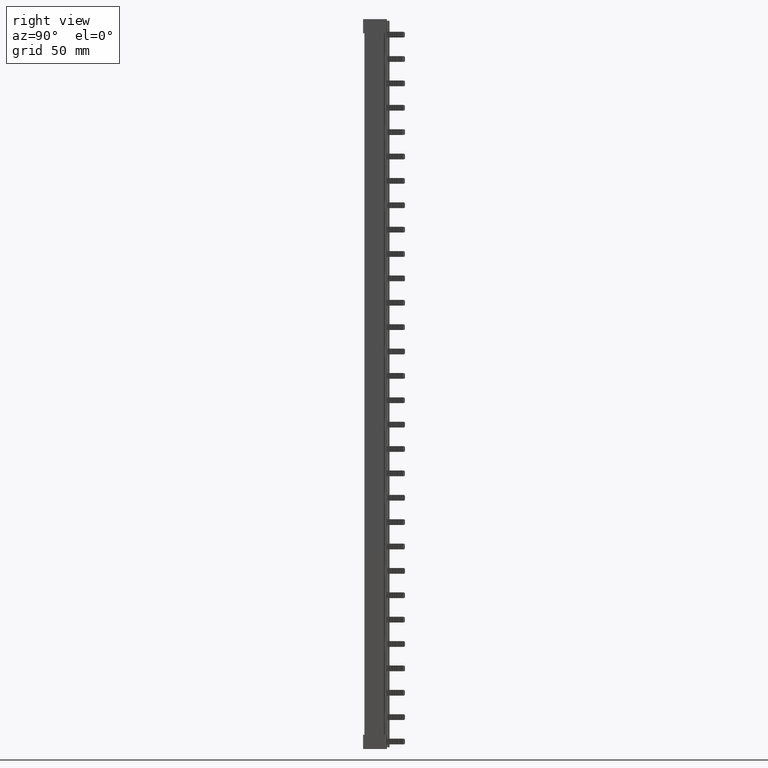
[diagram: clean part render]
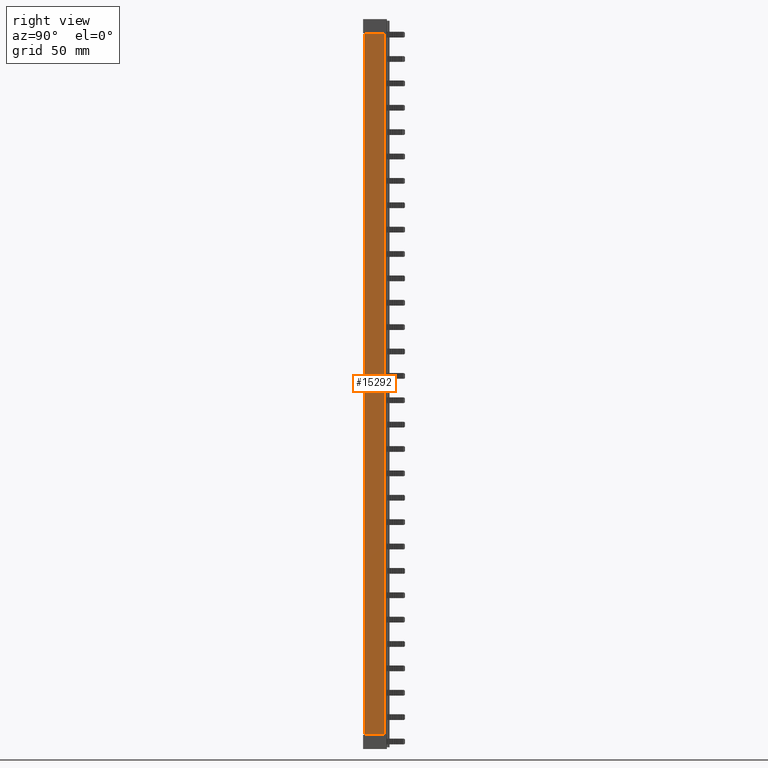
[diagram: same view with one face highlighted and labeled with its STEP entity id]
A machine part, right view. The second image highlights one B-rep face of the part: STEP entity #15292.
In plain terms, the highlighted planar face has unit normal (1, -0, 0).
Its self-contained STEP definition (entity closure, byte-faithful):
#6903 = LINE ( 'NONE', #6915, #46492 ) ;
#6915 = CARTESIAN_POINT ( 'NONE',  ( 13.67637477970029600, 0.4999999999992788000, 219.0000000000000000 ) ) ;
#6919 = DIRECTION ( 'NONE',  ( 0.0000000000000000000, 0.0000000000000000000, -1.000000000000000000 ) ) ;
#11377 = EDGE_LOOP ( 'NONE', ( #41565, #41556, #41542, #41645 ) ) ;
#13840 = EDGE_CURVE ( 'NONE', #50657, #49846, #51788, .T. ) ;
#13858 = EDGE_CURVE ( 'NONE', #49958, #49846, #51868, .T. ) ;
#13890 = EDGE_CURVE ( 'NONE', #49958, #50743, #52135, .T. ) ;
#14709 = EDGE_CURVE ( 'NONE', #50657, #50743, #6903, .T. ) ;
#15292 = ADVANCED_FACE ( 'NONE', ( #18163 ), #18165, .T. ) ;
#18155 = CARTESIAN_POINT ( 'NONE',  ( 13.67637477970029600, -9.057104323749694400, 219.0000000000000000 ) ) ;
#18163 = FACE_OUTER_BOUND ( 'NONE', #11377, .T. ) ;
#18165 = PLANE ( 'NONE',  #38346 ) ;
#18178 = DIRECTION ( 'NONE',  ( 1.000000000000000000, -0.0000000000000000000, 0.0000000000000000000 ) ) ;
#18180 = DIRECTION ( 'NONE',  ( 0.0000000000000000000, 0.0000000000000000000, -1.000000000000000000 ) ) ;
#38346 = AXIS2_PLACEMENT_3D ( 'NONE', #18155, #18178, #18180 ) ;
#41542 = ORIENTED_EDGE ( 'NONE', *, *, #14709, .T. ) ;
#41556 = ORIENTED_EDGE ( 'NONE', *, *, #13840, .F. ) ;
#41565 = ORIENTED_EDGE ( 'NONE', *, *, #13858, .T. ) ;
#41645 = ORIENTED_EDGE ( 'NONE', *, *, #13890, .F. ) ;
#45538 = CARTESIAN_POINT ( 'NONE',  ( 13.67637477970029600, 14.29107189157535600, 208.6000000000518100 ) ) ;
#45642 = CARTESIAN_POINT ( 'NONE',  ( 13.67637477970029600, 14.29107189157535600, -304.6000000000519200 ) ) ;
#46268 = CARTESIAN_POINT ( 'NONE',  ( 13.67637477970029600, 0.4999999999992788000, 208.6000000000518100 ) ) ;
#46312 = CARTESIAN_POINT ( 'NONE',  ( 13.67637477970029600, 0.4999999999992788000, -304.6000000000519200 ) ) ;
#46492 = VECTOR ( 'NONE', #6919, 1000.000000000000000 ) ;
#49846 = VERTEX_POINT ( 'NONE', #45538 ) ;
#49958 = VERTEX_POINT ( 'NONE', #45642 ) ;
#50657 = VERTEX_POINT ( 'NONE', #46268 ) ;
#50743 = VERTEX_POINT ( 'NONE', #46312 ) ;
#51788 = LINE ( 'NONE', #51802, #56111 ) ;
#51796 = DIRECTION ( 'NONE',  ( 0.0000000000000000000, 1.000000000000000000, 0.0000000000000000000 ) ) ;
#51802 = CARTESIAN_POINT ( 'NONE',  ( 13.67637477970029600, -9.057104323749694400, 208.6000000000518100 ) ) ;
#51868 = LINE ( 'NONE', #51968, #56163 ) ;
#51968 = CARTESIAN_POINT ( 'NONE',  ( 13.67637477970029600, 14.29107189157535600, 219.0000000000000000 ) ) ;
#51990 = DIRECTION ( 'NONE',  ( -0.0000000000000000000, -0.0000000000000000000, 1.000000000000000000 ) ) ;
#52135 = LINE ( 'NONE', #52139, #56268 ) ;
#52139 = CARTESIAN_POINT ( 'NONE',  ( 13.67637477970029600, -9.057104323749694400, -304.6000000000519200 ) ) ;
#52158 = DIRECTION ( 'NONE',  ( 0.0000000000000000000, -1.000000000000000000, 0.0000000000000000000 ) ) ;
#56111 = VECTOR ( 'NONE', #51796, 1000.000000000000000 ) ;
#56163 = VECTOR ( 'NONE', #51990, 1000.000000000000000 ) ;
#56268 = VECTOR ( 'NONE', #52158, 1000.000000000000000 ) ;